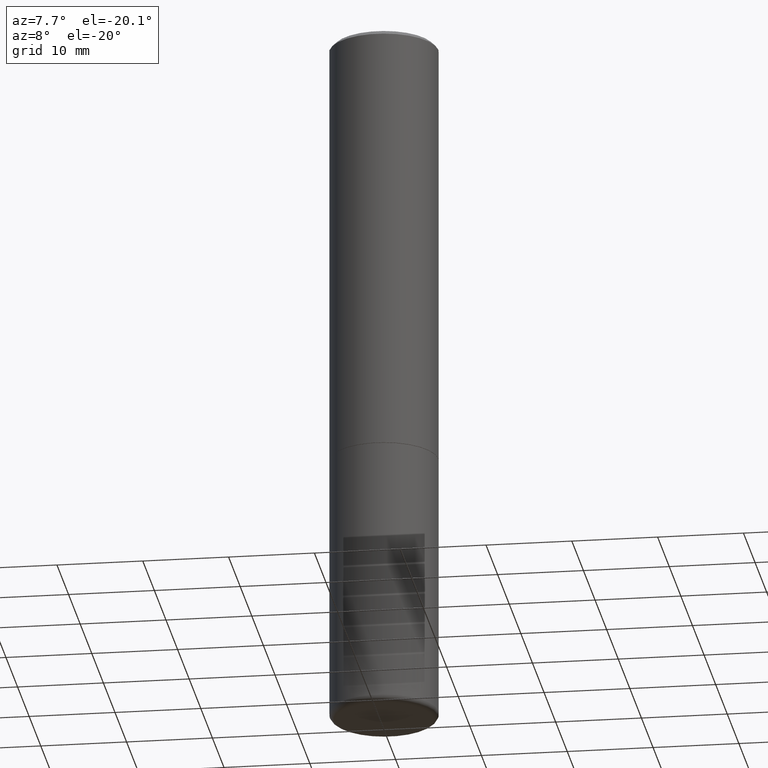
[diagram: clean part render]
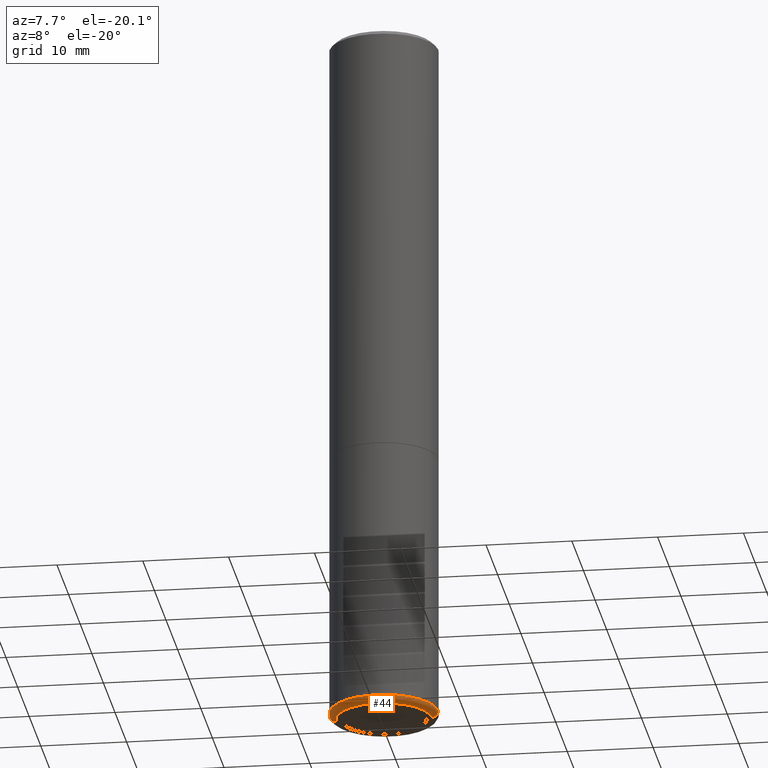
[diagram: same view with one face highlighted and labeled with its STEP entity id]
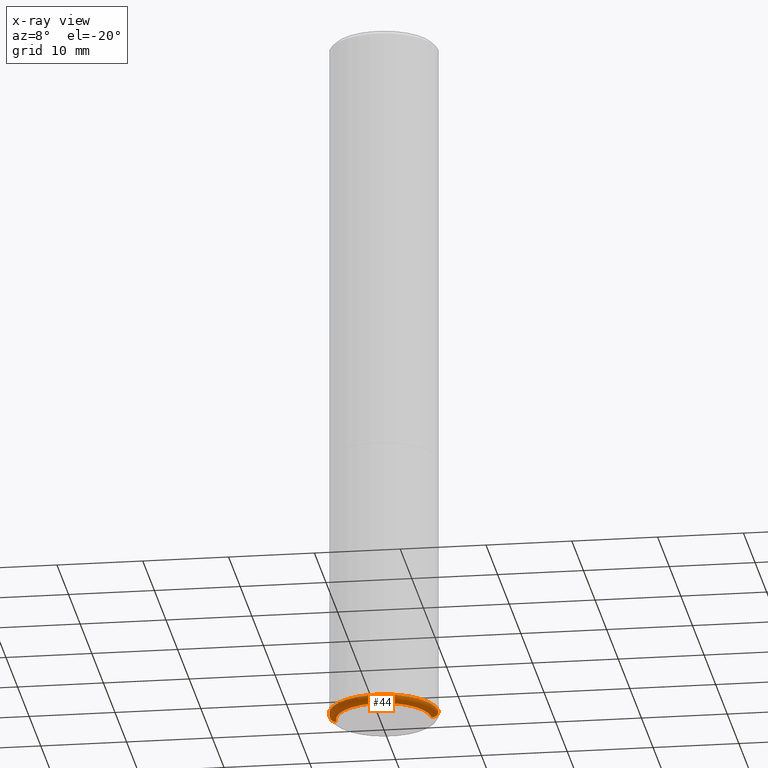
[diagram: x-ray of the same camera — body ghosted, the highlighted face saturated]
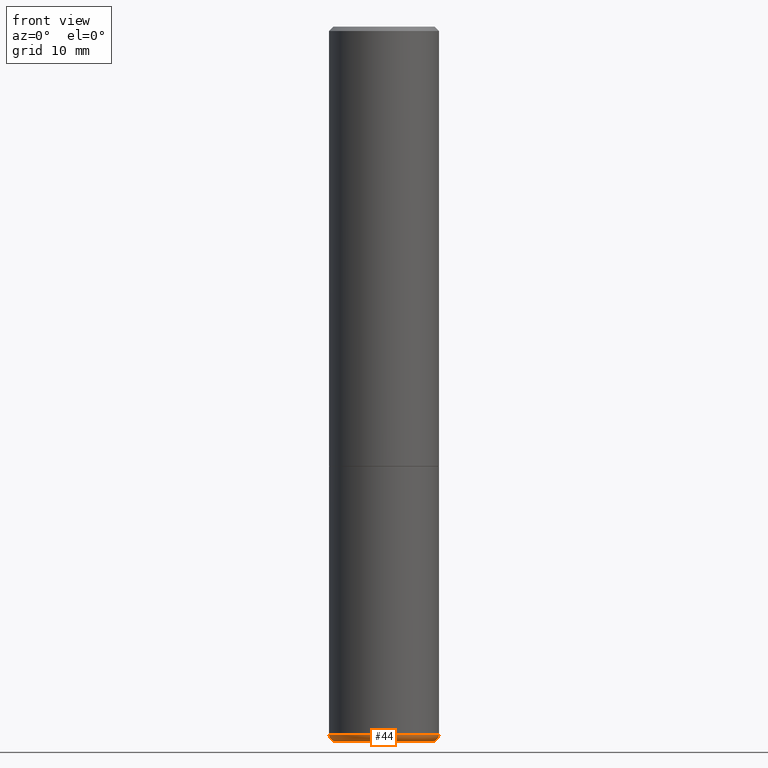
[diagram: same view with one face highlighted and labeled with its STEP entity id]
A machine part, auxiliary view. The second image highlights one B-rep face of the part: STEP entity #44.
The next image is the same camera in x-ray: the body ghosted, the highlighted face saturated — about 0% of this face is hidden behind the body in this view.
A second angle (front view) of the same face is appended — the face is thin or edge-on in the first view.
In plain terms, the highlighted toroidal blend (fillet) surface has major radius 5.588 mm and minor (blend) radius 0.762 mm.
Its self-contained STEP definition (entity closure, byte-faithful):
#20 = CIRCLE ( 'NONE', #141, 0.02999999999999981501 ) ;
#28 = ORIENTED_EDGE ( 'NONE', *, *, #398, .T. ) ;
#43 = TOROIDAL_SURFACE ( 'NONE', #83, 0.2200000000000002232, 0.02999999999999980807 ) ;
#44 = ADVANCED_FACE ( 'NONE', ( #106 ), #43, .T. ) ;
#68 = DIRECTION ( 'NONE',  ( 1.000000000000000000, -6.982962677686246200E-15, 0.000000000000000000 ) ) ;
#69 = EDGE_CURVE ( 'NONE', #245, #295, #20, .T. ) ;
#70 = EDGE_LOOP ( 'NONE', ( #221, #28, #329, #477 ) ) ;
#83 = AXIS2_PLACEMENT_3D ( 'NONE', #454, #212, #375 ) ;
#89 = CARTESIAN_POINT ( 'NONE',  ( 0.2500000000000000555, -1.298831456884382237E-14, -3.220001142308074993 ) ) ;
#99 = AXIS2_PLACEMENT_3D ( 'NONE', #311, #228, #346 ) ;
#106 = FACE_OUTER_BOUND ( 'NONE', #70, .T. ) ;
#111 = DIRECTION ( 'NONE',  ( -2.445468806185136597E-29, 3.491481338843145583E-15, 1.000000000000000000 ) ) ;
#124 = CIRCLE ( 'NONE', #408, 0.02999999999999981501 ) ;
#125 = CARTESIAN_POINT ( 'NONE',  ( -0.2500000000000000555, -7.336411449154020205E-15, -3.220001142308074993 ) ) ;
#135 = DIRECTION ( 'NONE',  ( -1.000000000000000000, 7.105427357600969515E-15, 0.000000000000000000 ) ) ;
#141 = AXIS2_PLACEMENT_3D ( 'NONE', #368, #255, #68 ) ;
#178 = EDGE_CURVE ( 'NONE', #294, #295, #313, .T. ) ;
#184 = DIRECTION ( 'NONE',  ( 1.000000000000000000, -6.982962677686265133E-15, 0.000000000000000000 ) ) ;
#207 = VERTEX_POINT ( 'NONE', #463 ) ;
#212 = DIRECTION ( 'NONE',  ( -2.445468806185136597E-29, 3.491481338843145583E-15, 1.000000000000000000 ) ) ;
#221 = ORIENTED_EDGE ( 'NONE', *, *, #286, .F. ) ;
#228 = DIRECTION ( 'NONE',  ( -2.445468806185136597E-29, 3.491481338843145583E-15, 1.000000000000000000 ) ) ;
#238 = DIRECTION ( 'NONE',  ( 7.105427357601001859E-15, 1.000000000000000000, -3.491481338843145583E-15 ) ) ;
#245 = VERTEX_POINT ( 'NONE', #468 ) ;
#255 = DIRECTION ( 'NONE',  ( -6.982962677686266711E-15, -1.000000000000000000, 3.491481338843145583E-15 ) ) ;
#286 = EDGE_CURVE ( 'NONE', #207, #294, #124, .T. ) ;
#294 = VERTEX_POINT ( 'NONE', #125 ) ;
#295 = VERTEX_POINT ( 'NONE', #89 ) ;
#311 = CARTESIAN_POINT ( 'NONE',  ( 7.874412349394905166E-29, -1.124257389942225570E-14, -3.220001142308074993 ) ) ;
#313 = CIRCLE ( 'NONE', #99, 0.2500000000000000555 ) ;
#329 = ORIENTED_EDGE ( 'NONE', *, *, #69, .T. ) ;
#346 = DIRECTION ( 'NONE',  ( 1.000000000000000000, -6.982962677686269077E-15, 0.000000000000000000 ) ) ;
#355 = CARTESIAN_POINT ( 'NONE',  ( 7.947773620101693940E-29, -1.134731435124022443E-14, -3.250000000000000000 ) ) ;
#363 = CIRCLE ( 'NONE', #460, 0.2197382039350491423 ) ;
#368 = CARTESIAN_POINT ( 'NONE',  ( 0.2200000000000002232, -1.277882568851323406E-14, -3.220001142308074993 ) ) ;
#375 = DIRECTION ( 'NONE',  ( 1.000000000000000000, -6.982962677686269866E-15, 4.883557194083114022E-29 ) ) ;
#398 = EDGE_CURVE ( 'NONE', #207, #245, #363, .T. ) ;
#408 = AXIS2_PLACEMENT_3D ( 'NONE', #473, #238, #135 ) ;
#454 = CARTESIAN_POINT ( 'NONE',  ( 7.874412349394905166E-29, -1.124257389942225570E-14, -3.220001142308074993 ) ) ;
#460 = AXIS2_PLACEMENT_3D ( 'NONE', #355, #111, #184 ) ;
#463 = CARTESIAN_POINT ( 'NONE',  ( -0.2197382039350491423, -9.626098782756011188E-15, -3.250000000000000000 ) ) ;
#468 = CARTESIAN_POINT ( 'NONE',  ( 0.2197382039350491423, -1.288173802818048494E-14, -3.250000000000000000 ) ) ;
#473 = CARTESIAN_POINT ( 'NONE',  ( -0.2200000000000002232, -9.679379880750033900E-15, -3.220001142308074993 ) ) ;
#477 = ORIENTED_EDGE ( 'NONE', *, *, #178, .F. ) ;